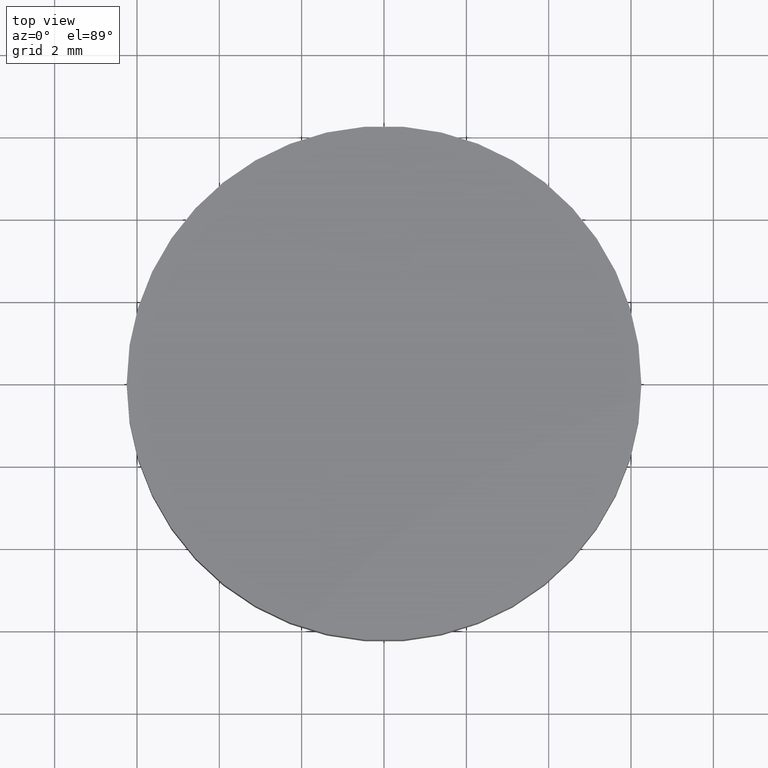
[diagram: clean part render]
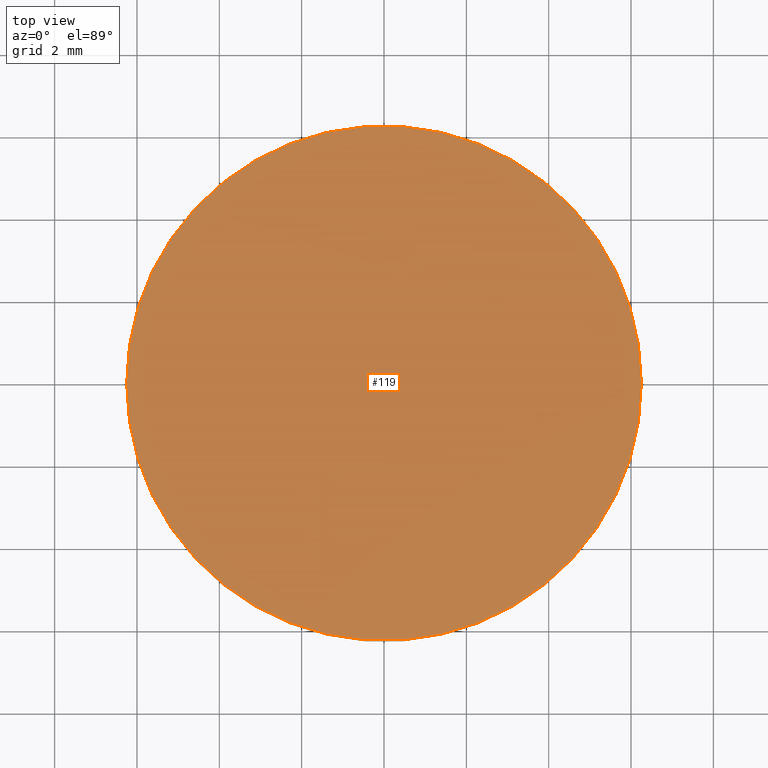
[diagram: same view with one face highlighted and labeled with its STEP entity id]
A machine part, top view. The second image highlights one B-rep face of the part: STEP entity #119.
In plain terms, the highlighted planar face has unit normal (0, 0, 1).
Its self-contained STEP definition (entity closure, byte-faithful):
#10 = DIRECTION ( 'NONE',  ( 1.000000000000000000, 0.0000000000000000000, 0.0000000000000000000 ) ) ;
#11 = EDGE_CURVE ( 'NONE', #44, #73, #42, .T. ) ;
#26 = AXIS2_PLACEMENT_3D ( 'NONE', #32, #116, #10 ) ;
#32 = CARTESIAN_POINT ( 'NONE',  ( 0.0000000000000000000, 0.0000000000000000000, 2.000000000000000000 ) ) ;
#35 = AXIS2_PLACEMENT_3D ( 'NONE', #113, #37, #101 ) ;
#37 = DIRECTION ( 'NONE',  ( 0.0000000000000000000, 0.0000000000000000000, 1.000000000000000000 ) ) ;
#38 = DIRECTION ( 'NONE',  ( 1.000000000000000000, 0.0000000000000000000, -0.0000000000000000000 ) ) ;
#41 = ORIENTED_EDGE ( 'NONE', *, *, #11, .T. ) ;
#42 = CIRCLE ( 'NONE', #26, 6.250000000000000000 ) ;
#44 = VERTEX_POINT ( 'NONE', #106 ) ;
#47 = PLANE ( 'NONE',  #137 ) ;
#49 = EDGE_LOOP ( 'NONE', ( #74, #41 ) ) ;
#73 = VERTEX_POINT ( 'NONE', #104 ) ;
#74 = ORIENTED_EDGE ( 'NONE', *, *, #133, .T. ) ;
#79 = CIRCLE ( 'NONE', #35, 6.250000000000000000 ) ;
#101 = DIRECTION ( 'NONE',  ( 1.000000000000000000, 0.0000000000000000000, 0.0000000000000000000 ) ) ;
#104 = CARTESIAN_POINT ( 'NONE',  ( -6.250000000000000000, 0.0000000000000000000, 2.000000000000000000 ) ) ;
#106 = CARTESIAN_POINT ( 'NONE',  ( 6.250000000000000000, 7.654042494670957600E-016, 2.000000000000000000 ) ) ;
#113 = CARTESIAN_POINT ( 'NONE',  ( 0.0000000000000000000, 0.0000000000000000000, 2.000000000000000000 ) ) ;
#114 = DIRECTION ( 'NONE',  ( 0.0000000000000000000, 0.0000000000000000000, 1.000000000000000000 ) ) ;
#116 = DIRECTION ( 'NONE',  ( 0.0000000000000000000, 0.0000000000000000000, 1.000000000000000000 ) ) ;
#119 = ADVANCED_FACE ( 'NONE', ( #120 ), #47, .T. ) ;
#120 = FACE_OUTER_BOUND ( 'NONE', #49, .T. ) ;
#132 = CARTESIAN_POINT ( 'NONE',  ( 0.0000000000000000000, 0.0000000000000000000, 2.000000000000000000 ) ) ;
#133 = EDGE_CURVE ( 'NONE', #73, #44, #79, .T. ) ;
#137 = AXIS2_PLACEMENT_3D ( 'NONE', #132, #114, #38 ) ;